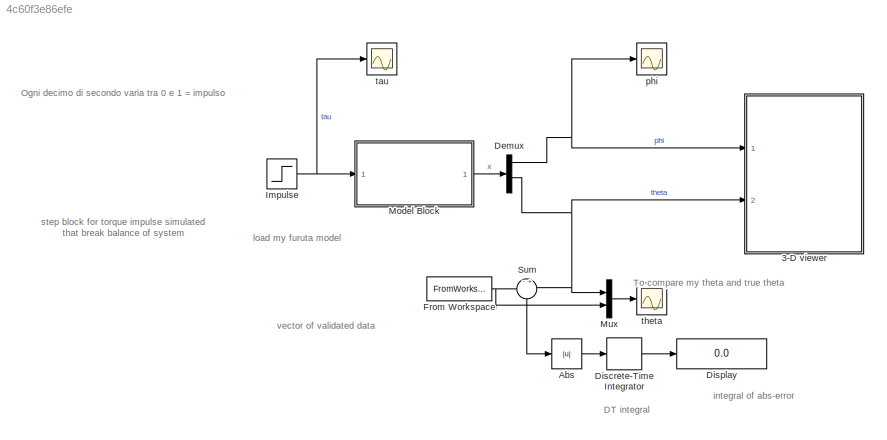
MODEL slx_4c60f3e86efe
KIND model
CONFIG AbsTol = auto
CONFIG EnableMultiTasking = on
CONFIG FixedStep = auto
CONFIG MaxStep = auto
CONFIG MinStep = auto
CONFIG PreLoadFcn = load theta_true
CONFIG RelTol = 1e-6
CONFIG SampleTimeConstraint = Unconstrained
CONFIG Solver = ode45
CONFIG SolverName = ode45
CONFIG StartTime = 0.0
CONFIG StopTime = 10
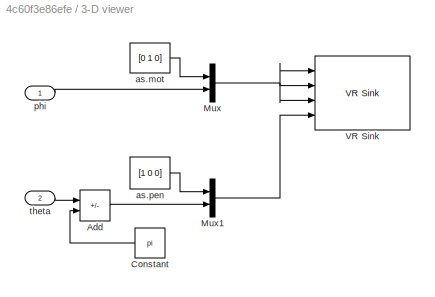
BLOCK [SubSystem] 3-D viewer
  Ports = [2]
  RequestExecContextInheritance = off
BLOCK [Sum] 3-D viewer/Add
  IconShape = rectangular
  Inputs = -+
  Ports = [2, 1]
BLOCK [Constant] 3-D viewer/Constant
  Value = pi
BLOCK [Mux] 3-D viewer/Mux
  DisplayOption = bar
  Inputs = 2
  Ports = [2, 1]
BLOCK [Mux] 3-D viewer/Mux1
  DisplayOption = bar
  Inputs = 2
  Ports = [2, 1]
BLOCK [Reference] 3-D viewer/VR Sink  REF=vrlib/VR Sink
  InstantiateOnLoad = on
  Ports = [4]
  SourceBlock = vrlib/VR Sink
  SourceProductBaseCode = SL
  SourceType = Virtual Reality Sink
BLOCK [Constant] 3-D viewer/as.mot
  Value = [0 1 0]
BLOCK [Constant] 3-D viewer/as.pen
  Value = [1 0 0]
BLOCK [Inport] 3-D viewer/phi
BLOCK [Inport] 3-D viewer/theta
  Port = 2
BLOCK [Abs] Abs
  SaturateOnIntegerOverflow = off
BLOCK [Demux] Demux
  Ports = [1, 4]
BLOCK [DiscreteIntegrator] Discrete-Time Integrator
  ICPrevOutput = DiscIntNeverNeededParam
  ICPrevScaledInput = DiscIntNeverNeededParam
  InitialConditionSetting = Auto
  Ports = [1, 1]
  SampleTime = 0.01
BLOCK [Display] Display
  Decimation = 1
  Ports = [1]
BLOCK [FromWorkspace] From Workspace
  Interpolate = off
  OutputAfterFinalValue = Holding final value
  SampleTime = 0.01
  VariableName = theta_true
BLOCK [Step] Impulse
  After = 0
  Before = 1
  SampleTime = 0
  Time = 0.1
BLOCK [ModelReference] Model Block
  ModelNameDialog = furuta_model.slx
  ModelReferenceVersion = 1.14
  Ports = [1, 1]
BLOCK [Mux] Mux
  DisplayOption = bar
  Inputs = 2
  Ports = [2, 1]
BLOCK [Sum] Sum
  Inputs = -+
  NameLocation = left
  Ports = [2, 1]
BLOCK [Scope] phi
  Floating = off
  NumInputPorts = 1
  Ports = [1]
  ScopeSpecificationString = Simulink.scopes.TimeScopeBlockCfg('CurrentConfiguration', extmgr.ConfigurationSet(extmgr.Configuration('Core','General UI',true),extmgr.Configuration('Core','Source UI',true),extmgr.Configuration('Sources','WiredSimulink',true,'DataLoggingSaveFormat','StructureWithTime','DataLoggingLimitDataPoints',true,'DataLoggingDecimation','1','DataLoggingDecimateData',true),extmgr.Configuration('Visuals','Tim...<+1654ch>
BLOCK [Scope] tau
  Floating = off
  NumInputPorts = 1
  Ports = [1]
  ScopeSpecificationString = Simulink.scopes.TimeScopeBlockCfg('CurrentConfiguration', extmgr.ConfigurationSet(extmgr.Configuration('Core','General UI',true),extmgr.Configuration('Core','Source UI',true),extmgr.Configuration('Sources','WiredSimulink',true,'DataLoggingLimitDataPoints',true,'DataLoggingSaveFormat','Array','DataLoggingDecimation','1','DataLoggingDecimateData',true),extmgr.Configuration('Visuals','Time Domain',tr...<+1614ch>
BLOCK [Scope] theta
  Floating = off
  NumInputPorts = 1
  Ports = [1]
  ScopeSpecificationString = Simulink.scopes.TimeScopeBlockCfg('CurrentConfiguration', extmgr.ConfigurationSet(extmgr.Configuration('Core','General UI',true),extmgr.Configuration('Core','Source UI',true),extmgr.Configuration('Sources','WiredSimulink',true,'DataLoggingVariableName','ScopeData1'),extmgr.Configuration('Visuals','Time Domain',true,'SerializedDisplays',{struct('MinYLimReal','-5.46177','MaxYLimReal','0.60686','YLab...<+1460ch>
ANNOTATION (root): step block for torque impulse simulated that break balance of system
ANNOTATION (root): DT integral
ANNOTATION (root): Ogni decimo di secondo varia tra 0 e 1 = impulso
ANNOTATION (root): To compare my theta and true theta
ANNOTATION (root): integral of abs-error
ANNOTATION (root): load my furuta model
ANNOTATION (root): vector of validated data
LINE 3-D viewer/Add:1 -> 3-D viewer/Mux1:2
LINE 3-D viewer/Constant:1 -> 3-D viewer/Add:2
LINE 3-D viewer/Mux1:1 -> 3-D viewer/VR Sink:4
NET 3-D viewer/Mux:1 -> 3-D viewer/VR Sink:1, 3-D viewer/VR Sink:2, 3-D viewer/VR Sink:3
LINE 3-D viewer/as.mot:1 -> 3-D viewer/Mux:1
LINE 3-D viewer/as.pen:1 -> 3-D viewer/Mux1:1
LINE 3-D viewer/phi:1 -> 3-D viewer/Mux:2
LINE 3-D viewer/theta:1 -> 3-D viewer/Add:1
LINE Abs:1 -> Discrete-Time Integrator:1
NET Demux:1 -> 3-D viewer:1, phi:1
NET Demux:3 -> 3-D viewer:2, Mux:1, Sum:2
LINE Discrete-Time Integrator:1 -> Display:1
NET From Workspace:1 -> Mux:2, Sum:1
NET Impulse:1 -> Model Block:1, tau:1
LINE Model Block:1 -> Demux:1
LINE Mux:1 -> theta:1
LINE Sum:1 -> Abs:1
note: NET lines group one-source signal fan-out (src -> all destinations, sorted); 1:1 wires keep LINE
